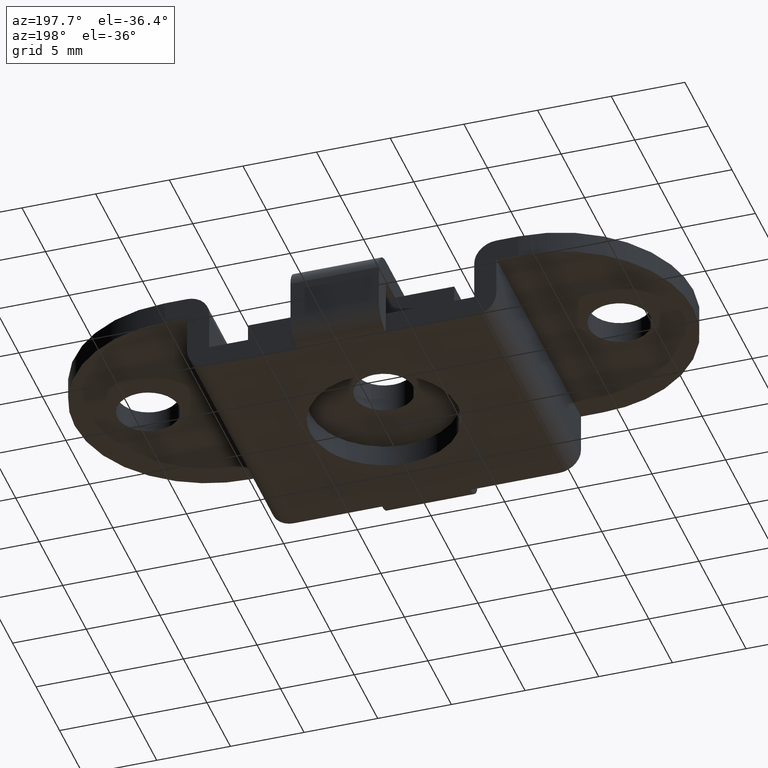
[diagram: clean part render]
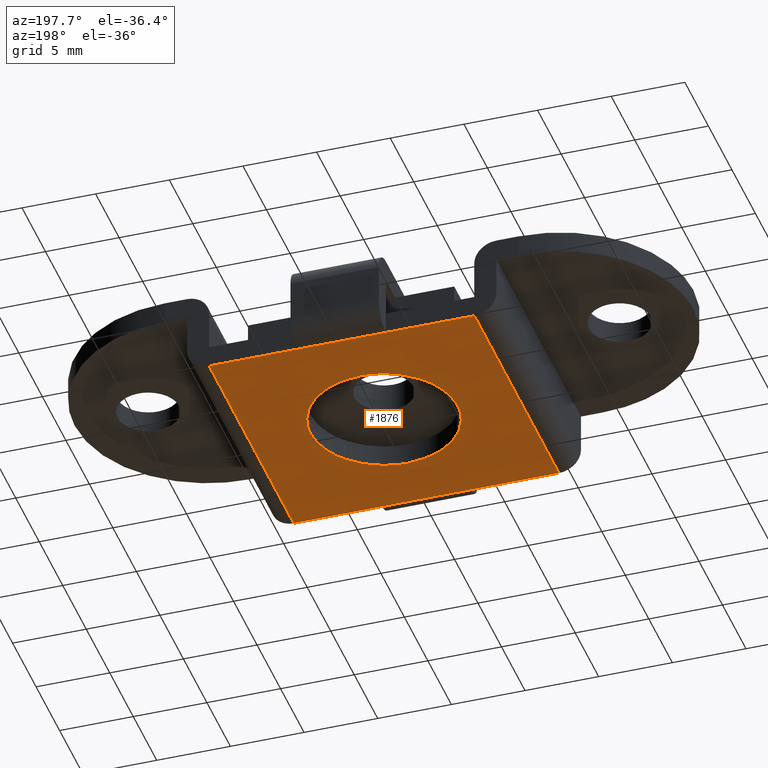
[diagram: same view with one face highlighted and labeled with its STEP entity id]
A machine part, auxiliary view. The second image highlights one B-rep face of the part: STEP entity #1876.
In plain terms, the highlighted face is a freeform B-spline surface patch.
Its self-contained STEP definition (entity closure, byte-faithful):
#592=CARTESIAN_POINT('',(3.626871793444205,-3.441772825803209,1.848188E-012));
#593=VERTEX_POINT('',#592);
#594=CARTESIAN_POINT('',(-0.000000324236915,-4.999999999999989,0.0));
#595=VERTEX_POINT('',#594);
#596=CARTESIAN_POINT('',(3.626871793444205,-3.441772825803209,1.848188E-012));
#597=CARTESIAN_POINT('',(3.423215406721647,-3.656422929322394,1.744409E-012));
#598=CARTESIAN_POINT('',(2.977634978754980,-4.049393712816439,1.517349E-012));
#599=CARTESIAN_POINT('',(2.242925987740639,-4.495113645645178,1.142955E-012));
#600=CARTESIAN_POINT('',(1.533339453622273,-4.776247336540807,7.813622E-013));
#601=CARTESIAN_POINT('',(0.792547160313471,-4.955773697101916,4.038678E-013));
#602=CARTESIAN_POINT('',(0.295889655508276,-5.000031321960930,1.507802E-013));
#603=CARTESIAN_POINT('',(-0.000000324236915,-4.999999999999989,0.0));
#604=B_SPLINE_CURVE_WITH_KNOTS('',3,(#596,#597,#598,#599,#600,#601,#602,#603),.UNSPECIFIED.,.F.,.U.,(4,1,1,1,1,4),(7.543394E-009,0.887664570450514,1.775335467180066,2.567887494586449,3.170233032252343,4.057897595160039),.UNSPECIFIED.);
#605=EDGE_CURVE('',#593,#595,#604,.T.);
#607=CARTESIAN_POINT('',(-5.0,0.0,0.0));
#608=VERTEX_POINT('',#607);
#609=CARTESIAN_POINT('',(-0.000000324236915,-4.999999999999989,0.0));
#610=CARTESIAN_POINT('',(-0.460212270313453,-5.000151425749215,0.0));
#611=CARTESIAN_POINT('',(-1.145302321775578,-4.904740234089545,0.0));
#612=CARTESIAN_POINT('',(-1.955935730597478,-4.614576344565321,0.0));
#613=CARTESIAN_POINT('',(-2.643068629899349,-4.271434348390238,0.0));
#614=CARTESIAN_POINT('',(-3.268439175093524,-3.819375680652176,0.0));
#615=CARTESIAN_POINT('',(-3.929981199658527,-3.133034108355920,0.0));
#616=CARTESIAN_POINT('',(-4.377741891687538,-2.467352349573585,0.0));
#617=CARTESIAN_POINT('',(-4.708041492092798,-1.728205650504709,0.0));
#618=CARTESIAN_POINT('',(-4.936021967824107,-0.951043263126143,0.0));
#619=CARTESIAN_POINT('',(-5.000064047398016,-0.357932923622321,0.0));
#620=CARTESIAN_POINT('',(-5.0,0.0,0.0));
#621=B_SPLINE_CURVE_WITH_KNOTS('',3,(#609,#610,#611,#612,#613,#614,#615,#616,#617,#618,#619,#620),.UNSPECIFIED.,.F.,.U.,(4,1,1,1,1,1,1,1,1,4),(0.000000026666211,1.380583045920688,2.055538306480571,2.577092645472697,3.681570689012800,4.356499960044744,5.430296533139000,6.074573718913661,6.780210716973892,7.853993771847659),.UNSPECIFIED.);
#622=EDGE_CURVE('',#595,#608,#621,.T.);
#624=CARTESIAN_POINT('',(-3.626871793444214,3.441772825803218,1.848188E-012));
#625=VERTEX_POINT('',#624);
#626=CARTESIAN_POINT('',(-5.0,0.0,0.0));
#627=CARTESIAN_POINT('',(-5.000111960271489,0.415211933718091,2.229635E-013));
#628=CARTESIAN_POINT('',(-4.918230757962866,1.067596515191102,5.732858E-013));
#629=CARTESIAN_POINT('',(-4.612437601479247,1.989467721931916,1.068319E-012));
#630=CARTESIAN_POINT('',(-4.213251372785791,2.744423829517458,1.473721E-012));
#631=CARTESIAN_POINT('',(-3.831035372355827,3.226665118591777,1.732678E-012));
#632=CARTESIAN_POINT('',(-3.626871793444214,3.441772825803218,1.848188E-012));
#633=B_SPLINE_CURVE_WITH_KNOTS('',3,(#626,#627,#628,#629,#630,#631,#632),.UNSPECIFIED.,.F.,.U.,(4,1,1,1,4),(1.770093E-009,1.245599835975976,1.957370779769475,2.906399293358671,3.796113354029984),.UNSPECIFIED.);
#634=EDGE_CURVE('',#608,#625,#633,.T.);
#711=CARTESIAN_POINT('',(5.0,0.0,0.0));
#712=VERTEX_POINT('',#711);
#713=CARTESIAN_POINT('',(5.0,0.0,0.0));
#714=CARTESIAN_POINT('',(5.000046704887869,-0.336115439864950,1.804897E-013));
#715=CARTESIAN_POINT('',(4.937957138354636,-0.949007422992705,5.096049E-013));
#716=CARTESIAN_POINT('',(4.676071234564541,-1.843939069947303,9.901718E-013));
#717=CARTESIAN_POINT('',(4.259448828601072,-2.679249389514588,1.438723E-012));
#718=CARTESIAN_POINT('',(3.858270978848668,-3.197994253214128,1.717282E-012));
#719=CARTESIAN_POINT('',(3.626871793444205,-3.441772825803209,1.848188E-012));
#720=B_SPLINE_CURVE_WITH_KNOTS('',3,(#713,#714,#715,#716,#717,#718,#719),.UNSPECIFIED.,.F.,.U.,(4,1,1,1,4),(1.770428E-009,1.008342617229010,1.838742576036139,2.787770738571724,3.796113354029975),.UNSPECIFIED.);
#721=EDGE_CURVE('',#712,#593,#720,.T.);
#766=CARTESIAN_POINT('',(0.000000324236865,4.999999999999989,0.0));
#767=VERTEX_POINT('',#766);
#768=CARTESIAN_POINT('',(-3.626871793444214,3.441772825803218,1.848188E-012));
#769=CARTESIAN_POINT('',(-3.343258401333651,3.740817455293407,1.703664E-012));
#770=CARTESIAN_POINT('',(-2.882465436148339,4.119275608632211,1.468852E-012));
#771=CARTESIAN_POINT('',(-2.097570837403998,4.558727681572661,1.068884E-012));
#772=CARTESIAN_POINT('',(-1.215184889402378,4.895544309336662,6.192364E-013));
#773=CARTESIAN_POINT('',(-0.454414917207756,5.000154120584641,2.315618E-013));
#774=CARTESIAN_POINT('',(0.000000324236865,4.999999999999989,0.0));
#775=B_SPLINE_CURVE_WITH_KNOTS('',3,(#768,#769,#770,#771,#772,#773,#774),.UNSPECIFIED.,.F.,.U.,(4,1,1,1,4),(7.543813E-009,1.236392274457506,1.775335467180303,2.694695885553275,4.057897595159992),.UNSPECIFIED.);
#776=EDGE_CURVE('',#625,#767,#775,.T.);
#778=CARTESIAN_POINT('',(0.000000324236865,4.999999999999989,0.0));
#779=CARTESIAN_POINT('',(0.327249904620431,5.000044914051012,0.0));
#780=CARTESIAN_POINT('',(0.910145084251712,4.942556555088977,0.0));
#781=CARTESIAN_POINT('',(1.769427718381630,4.701942953034152,0.0));
#782=CARTESIAN_POINT('',(2.410013930617477,4.398960781790801,0.0));
#783=CARTESIAN_POINT('',(3.027773277870901,3.997054960269302,0.0));
#784=CARTESIAN_POINT('',(3.590338461832621,3.517804623480342,0.0));
#785=CARTESIAN_POINT('',(4.085478277040822,2.914452778093998,0.0));
#786=CARTESIAN_POINT('',(4.469852508893901,2.273133738398760,0.0));
#787=CARTESIAN_POINT('',(4.754767195928713,1.614117797312634,0.0));
#788=CARTESIAN_POINT('',(4.954146126784334,0.828343329027123,0.0));
#789=CARTESIAN_POINT('',(5.000016885599007,0.276116325256504,0.0));
#790=CARTESIAN_POINT('',(5.0,0.0,0.0));
#791=B_SPLINE_CURVE_WITH_KNOTS('',3,(#778,#779,#780,#781,#782,#783,#784,#785,#786,#787,#788,#789,#790),.UNSPECIFIED.,.F.,.U.,(4,1,1,1,1,1,1,1,1,1,4),(0.000000026674506,0.981741439466369,1.748740557944819,2.669137173670099,3.098653060915373,3.957660110620444,4.878061897331879,5.430296533142011,6.197292986501568,7.025646123378274,7.853993771847650),.UNSPECIFIED.);
#792=EDGE_CURVE('',#767,#712,#791,.T.);
#1128=CARTESIAN_POINT('',(9.0,9.0,0.0));
#1129=VERTEX_POINT('',#1128);
#1150=CARTESIAN_POINT('',(9.0,-9.0,0.0));
#1151=VERTEX_POINT('',#1150);
#1165=CARTESIAN_POINT('',(9.0,9.0,0.0));
#1166=CARTESIAN_POINT('',(9.0,-9.0,0.0));
#1167=QUASI_UNIFORM_CURVE('',1,(#1165,#1166),.UNSPECIFIED.,.F.,.U.);
#1168=EDGE_CURVE('',#1129,#1151,#1167,.T.);
#1187=CARTESIAN_POINT('',(-9.0,9.0,0.0));
#1188=VERTEX_POINT('',#1187);
#1204=CARTESIAN_POINT('',(-9.0,-9.0,0.0));
#1205=VERTEX_POINT('',#1204);
#1206=CARTESIAN_POINT('',(-9.0,-9.0,0.0));
#1207=CARTESIAN_POINT('',(-9.0,9.0,0.0));
#1208=QUASI_UNIFORM_CURVE('',1,(#1206,#1207),.UNSPECIFIED.,.F.,.U.);
#1209=EDGE_CURVE('',#1205,#1188,#1208,.T.);
#1250=CARTESIAN_POINT('',(3.0,-9.0,0.0));
#1251=VERTEX_POINT('',#1250);
#1272=CARTESIAN_POINT('',(-3.0,-9.0,0.0));
#1273=VERTEX_POINT('',#1272);
#1287=CARTESIAN_POINT('',(3.0,-9.0,0.0));
#1288=CARTESIAN_POINT('',(-3.0,-9.0,0.0));
#1289=QUASI_UNIFORM_CURVE('',1,(#1287,#1288),.UNSPECIFIED.,.F.,.U.);
#1290=EDGE_CURVE('',#1251,#1273,#1289,.T.);
#1829=CARTESIAN_POINT('',(-9.899099965112507,-9.899099965112507,0.0));
#1830=CARTESIAN_POINT('',(9.899100447910129,-9.899099965112507,0.0));
#1831=CARTESIAN_POINT('',(-9.899099965112507,9.899100447910129,0.0));
#1832=CARTESIAN_POINT('',(9.899100447910129,9.899100447910129,0.0));
#1833=B_SPLINE_SURFACE_WITH_KNOTS('',1,1,((#1829,#1831),(#1830,#1832)),.UNSPECIFIED.,.F.,.F.,.U.,(2,2),(2,2),(0.0,19.798200413022631),(0.0,19.798200413022631),.UNSPECIFIED.);
#1834=CARTESIAN_POINT('',(-3.0,9.0,0.0));
#1835=VERTEX_POINT('',#1834);
#1836=CARTESIAN_POINT('',(-3.0,9.0,0.0));
#1837=CARTESIAN_POINT('',(-9.0,9.0,0.0));
#1838=QUASI_UNIFORM_CURVE('',1,(#1836,#1837),.UNSPECIFIED.,.F.,.U.);
#1839=EDGE_CURVE('',#1835,#1188,#1838,.T.);
#1840=ORIENTED_EDGE('',*,*,#1839,.F.);
#1841=CARTESIAN_POINT('',(3.0,9.0,0.0));
#1842=VERTEX_POINT('',#1841);
#1843=CARTESIAN_POINT('',(-3.0,9.0,0.0));
#1844=CARTESIAN_POINT('',(3.0,9.0,0.0));
#1845=QUASI_UNIFORM_CURVE('',1,(#1843,#1844),.UNSPECIFIED.,.F.,.U.);
#1846=EDGE_CURVE('',#1835,#1842,#1845,.T.);
#1847=ORIENTED_EDGE('',*,*,#1846,.T.);
#1848=CARTESIAN_POINT('',(9.0,9.0,0.0));
#1849=CARTESIAN_POINT('',(3.0,9.0,0.0));
#1850=QUASI_UNIFORM_CURVE('',1,(#1848,#1849),.UNSPECIFIED.,.F.,.U.);
#1851=EDGE_CURVE('',#1129,#1842,#1850,.T.);
#1852=ORIENTED_EDGE('',*,*,#1851,.F.);
#1853=ORIENTED_EDGE('',*,*,#1168,.T.);
#1854=CARTESIAN_POINT('',(9.0,-9.0,0.0));
#1855=CARTESIAN_POINT('',(3.0,-9.0,0.0));
#1856=QUASI_UNIFORM_CURVE('',1,(#1854,#1855),.UNSPECIFIED.,.F.,.U.);
#1857=EDGE_CURVE('',#1151,#1251,#1856,.T.);
#1858=ORIENTED_EDGE('',*,*,#1857,.T.);
#1859=ORIENTED_EDGE('',*,*,#1290,.T.);
#1860=CARTESIAN_POINT('',(-3.0,-9.0,0.0));
#1861=CARTESIAN_POINT('',(-9.0,-9.0,0.0));
#1862=QUASI_UNIFORM_CURVE('',1,(#1860,#1861),.UNSPECIFIED.,.F.,.U.);
#1863=EDGE_CURVE('',#1273,#1205,#1862,.T.);
#1864=ORIENTED_EDGE('',*,*,#1863,.T.);
#1865=ORIENTED_EDGE('',*,*,#1209,.T.);
#1866=EDGE_LOOP('',(#1840,#1847,#1852,#1853,#1858,#1859,#1864,#1865));
#1867=FACE_OUTER_BOUND('',#1866,.T.);
#1868=ORIENTED_EDGE('',*,*,#622,.F.);
#1869=ORIENTED_EDGE('',*,*,#605,.F.);
#1870=ORIENTED_EDGE('',*,*,#721,.F.);
#1871=ORIENTED_EDGE('',*,*,#792,.F.);
#1872=ORIENTED_EDGE('',*,*,#776,.F.);
#1873=ORIENTED_EDGE('',*,*,#634,.F.);
#1874=EDGE_LOOP('',(#1868,#1869,#1870,#1871,#1872,#1873));
#1875=FACE_BOUND('',#1874,.T.);
#1876=ADVANCED_FACE('',(#1867,#1875),#1833,.F.);